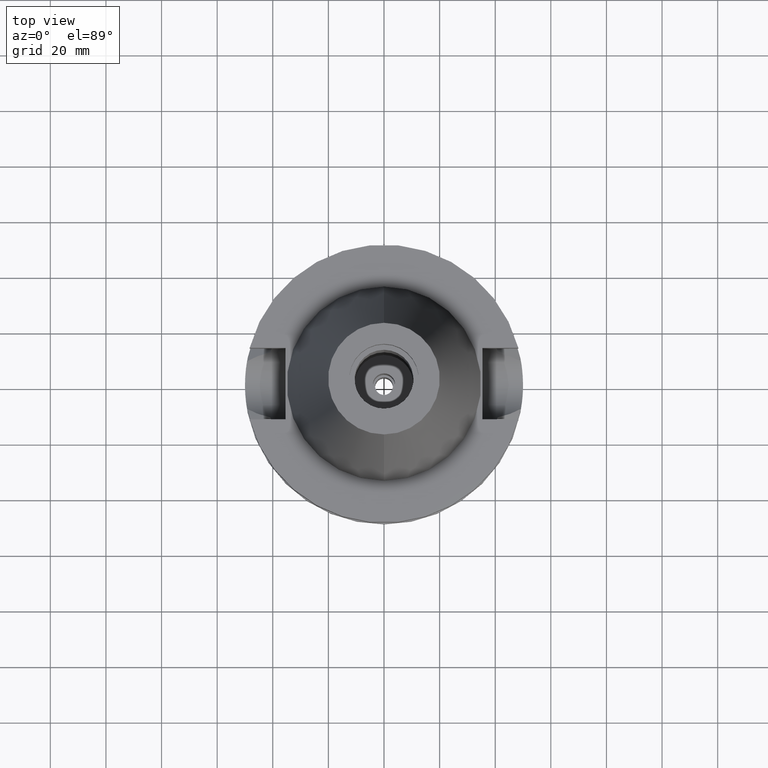
[diagram: clean part render]
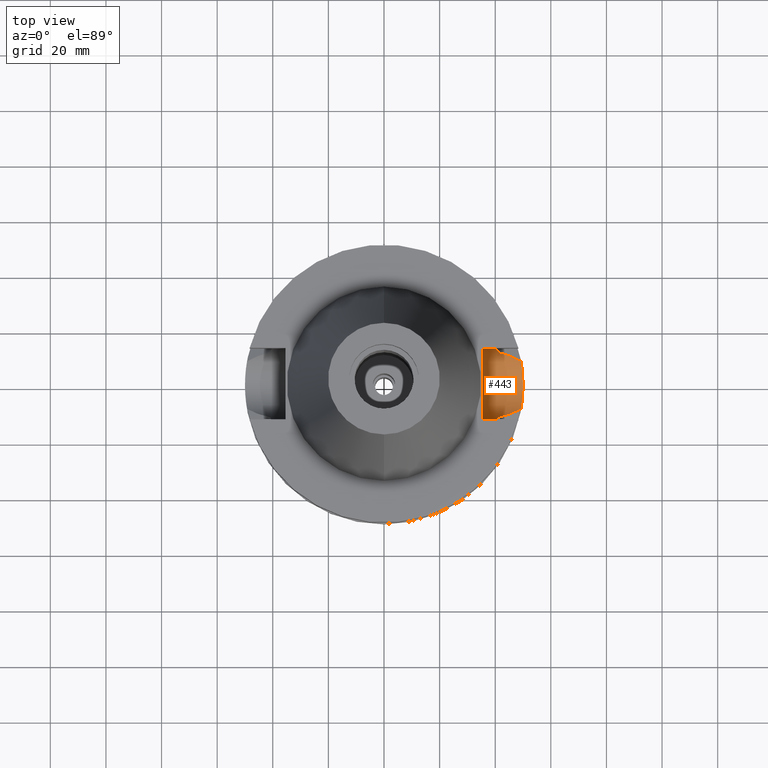
[diagram: same view with one face highlighted and labeled with its STEP entity id]
A machine part, top view. The second image highlights one B-rep face of the part: STEP entity #443.
In plain terms, the highlighted cylindrical surface (edge-blend (fillet) strip) has radius 12.85 mm, axis along (1, 0, 0).
Its self-contained STEP definition (entity closure, byte-faithful):
#7 = EDGE_LOOP ( 'NONE', ( #1324, #1234, #2776, #170, #2078, #1571, #2456, #1216, #219 ) ) ;
#15 = B_SPLINE_CURVE_WITH_KNOTS ( 'NONE', 3,
 ( #1900, #904, #2172, #2404, #2940, #1919, #1880, #230, #1713, #2872, #192, #1692, #1212, #922, #450 ),
 .UNSPECIFIED., .F., .F.,
 ( 4, 2, 2, 1, 1, 1, 2, 2, 4 ),
 ( 0.0000000000000000000, 0.2500000000000126010, 0.3750000000000180411, 0.4375000000000210942, 0.4687500000000225375, 0.4843750000000232592, 0.4921875000000233147, 0.5000000000000233147, 1.000000000000000000 ),
 .UNSPECIFIED. ) ;
#24 = CARTESIAN_POINT ( 'NONE',  ( 49.84835047889562532, 3.895932941305893848, -33.39806964268240819 ) ) ;
#30 = CARTESIAN_POINT ( 'NONE',  ( 40.51083188481999997, -12.84999999999999964, -21.14999999999999858 ) ) ;
#33 = B_SPLINE_CURVE_WITH_KNOTS ( 'NONE', 3,
 ( #2142, #3088, #2595, #2835, #151, #603, #2362, #2861, #646, #1138, #1168, #2822, #890, #3119 ),
 .UNSPECIFIED., .F., .F.,
 ( 4, 2, 2, 1, 1, 2, 2, 4 ),
 ( 0.0000000000000000000, 0.2500000000000049960, 0.3750000000000074940, 0.4375000000000087708, 0.4687500000000102141, 0.4843750000000111022, 0.5000000000000121014, 1.000000000000000000 ),
 .UNSPECIFIED. ) ;
#62 = CARTESIAN_POINT ( 'NONE',  ( 40.51083188481998576, 12.84999999999999609, -22.03305700391314659 ) ) ;
#151 = CARTESIAN_POINT ( 'NONE',  ( 40.54944527668359200, -12.72806992640919255, -22.93044913861063705 ) ) ;
#167 = EDGE_CURVE ( 'NONE', #1740, #1170, #2204, .T. ) ;
#170 = ORIENTED_EDGE ( 'NONE', *, *, #1440, .T. ) ;
#192 = CARTESIAN_POINT ( 'NONE',  ( 45.47680401742304923, -10.32880709954208598, -28.79450308994617558 ) ) ;
#219 = ORIENTED_EDGE ( 'NONE', *, *, #2503, .T. ) ;
#230 = CARTESIAN_POINT ( 'NONE',  ( 45.22093153202164473, -10.42516394849968719, -28.66289994002921304 ) ) ;
#278 = CARTESIAN_POINT ( 'NONE',  ( 49.49358591670171137, 7.117173179385146931, -31.87759042682807120 ) ) ;
#293 = CARTESIAN_POINT ( 'NONE',  ( 49.79168103802542333, 4.559431696498887909, -33.16391296944072309 ) ) ;
#296 = FACE_OUTER_BOUND ( 'NONE', #7, .T. ) ;
#326 = EDGE_CURVE ( 'NONE', #2611, #1740, #1621, .T. ) ;
#334 = CARTESIAN_POINT ( 'NONE',  ( 40.60256585323760703, 12.55733039765435954, -23.87702712880619060 ) ) ;
#432 = CARTESIAN_POINT ( 'NONE',  ( 49.79076485306589461, -4.569454252982713349, -33.16010525646407814 ) ) ;
#443 = ADVANCED_FACE ( 'NONE', ( #296 ), #1776, .F. ) ;
#450 = CARTESIAN_POINT ( 'NONE',  ( 49.26250064874000145, -8.556052234130000045, -30.73730776426999967 ) ) ;
#457 = CARTESIAN_POINT ( 'NONE',  ( 40.63719394021434539, 12.44501252811690506, -24.35255093168898455 ) ) ;
#462 = CARTESIAN_POINT ( 'NONE',  ( 49.71768875269584242, -5.301942241656695920, -32.85649167150086214 ) ) ;
#483 = CARTESIAN_POINT ( 'NONE',  ( 49.66529355495303832, -5.772644196052398868, -32.63560987239748812 ) ) ;
#491 = CARTESIAN_POINT ( 'NONE',  ( 40.85052569294000335, 11.72538061688000077, -26.40718074535000426 ) ) ;
#522 = CARTESIAN_POINT ( 'NONE',  ( 40.85052569294000335, 11.72538061688000077, -26.40718074535000426 ) ) ;
#541 = AXIS2_PLACEMENT_3D ( 'NONE', #1568, #2527, #600 ) ;
#546 = CARTESIAN_POINT ( 'NONE',  ( 49.26250064874000145, 8.556052234130000045, -30.73730776426999967 ) ) ;
#558 = B_SPLINE_CURVE_WITH_KNOTS ( 'NONE', 3,
 ( #1773, #1030, #1499, #2246, #1483, #795, #24, #1294, #2508, #2766, #2941, #1248, #2750, #293, #1974, #2491, #278, #1230, #546 ),
 .UNSPECIFIED., .F., .F.,
 ( 4, 2, 2, 1, 1, 1, 1, 1, 2, 2, 2, 4 ),
 ( 0.0000000000000000000, 0.2500000000000867639, 0.3750000000001300626, 0.4375000000001519340, 0.4687500000001633693, 0.4843750000001689759, 0.4921875000001714184, 0.4960937500001728062, 0.4980468750001731948, 0.5000000000001735279, 0.7500000000000867084, 1.000000000000000000 ),
 .UNSPECIFIED. ) ;
#570 = CARTESIAN_POINT ( 'NONE',  ( 40.60613153987078050, 12.54580241307119692, -23.92958009225780458 ) ) ;
#600 = DIRECTION ( 'NONE',  ( 0.0000000000000000000, 0.0000000000000000000, -1.000000000000000000 ) ) ;
#603 = CARTESIAN_POINT ( 'NONE',  ( 40.56599387319658234, -12.67510252611517352, -23.26591392763370081 ) ) ;
#646 = CARTESIAN_POINT ( 'NONE',  ( 40.59187978545035236, -12.59183662339848375, -23.71299885588245715 ) ) ;
#664 = CARTESIAN_POINT ( 'NONE',  ( 40.85052569294000335, -11.72538061688000077, -26.40718074535000426 ) ) ;
#696 = CARTESIAN_POINT ( 'NONE',  ( 45.30652602070815504, 10.39315923621389182, -28.70677160916045523 ) ) ;
#795 = CARTESIAN_POINT ( 'NONE',  ( 49.86954879904999416, 3.608421991056290690, -33.48456028783355265 ) ) ;
#872 = EDGE_CURVE ( 'NONE', #1669, #1717, #15, .T. ) ;
#890 = CARTESIAN_POINT ( 'NONE',  ( 40.73816527417317701, -12.11683760438691948, -25.53409260248793800 ) ) ;
#900 = CARTESIAN_POINT ( 'NONE',  ( 49.99999999999997158, -0.7411113158218399777, -33.99999999999998579 ) ) ;
#904 = CARTESIAN_POINT ( 'NONE',  ( 41.73175659805394844, -11.52073373974564063, -26.86361597987883343 ) ) ;
#922 = CARTESIAN_POINT ( 'NONE',  ( 48.17852091553269389, -9.178111292532616261, -30.18216027894170495 ) ) ;
#929 = CARTESIAN_POINT ( 'NONE',  ( 49.26250064874000145, -8.556052234130000045, -30.73730776426999967 ) ) ;
#951 = CARTESIAN_POINT ( 'NONE',  ( 49.78847160095052260, -4.594427208010531949, -33.15057897142614252 ) ) ;
#966 = CARTESIAN_POINT ( 'NONE',  ( 40.61156370412643213, 12.52823179351201333, -24.00849701668938252 ) ) ;
#981 = CARTESIAN_POINT ( 'NONE',  ( 48.07284431837162231, 9.204936231272920821, -30.12791793791312855 ) ) ;
#1001 = CARTESIAN_POINT ( 'NONE',  ( 45.36532617387336330, 10.37111397523315048, -28.73702095132316714 ) ) ;
#1030 = CARTESIAN_POINT ( 'NONE',  ( 49.99999999999999289, 0.7411266725617535744, -34.00000000000000711 ) ) ;
#1033 = CARTESIAN_POINT ( 'NONE',  ( 45.61055605103444321, 10.27792771471751010, -28.86316595457725498 ) ) ;
#1072 = CARTESIAN_POINT ( 'NONE',  ( 40.85052569294000335, 11.72538061688000077, -26.40718074535000426 ) ) ;
#1074 = CARTESIAN_POINT ( 'NONE',  ( 35.39999999999999858, 12.84999999999999964, -21.14999999999999858 ) ) ;
#1128 = VERTEX_POINT ( 'NONE', #1074 ) ;
#1138 = CARTESIAN_POINT ( 'NONE',  ( 40.59544233053302520, -12.58034074061086294, -23.76884316745783465 ) ) ;
#1168 = CARTESIAN_POINT ( 'NONE',  ( 40.59736410791902017, -12.57413583718784800, -23.79845734576946725 ) ) ;
#1170 = VERTEX_POINT ( 'NONE', #3087 ) ;
#1174 = CARTESIAN_POINT ( 'NONE',  ( 49.49359291796877613, -7.117121549473845121, -31.87762897366440384 ) ) ;
#1212 = CARTESIAN_POINT ( 'NONE',  ( 46.93070007446810621, -9.772977189546004695, -29.54224714980169963 ) ) ;
#1216 = ORIENTED_EDGE ( 'NONE', *, *, #1245, .T. ) ;
#1230 = CARTESIAN_POINT ( 'NONE',  ( 49.38718097017334685, 7.838190275439148813, -31.37795314318936235 ) ) ;
#1234 = ORIENTED_EDGE ( 'NONE', *, *, #167, .T. ) ;
#1245 = EDGE_CURVE ( 'NONE', #1717, #1321, #2393, .T. ) ;
#1248 = CARTESIAN_POINT ( 'NONE',  ( 49.79344695708956436, 4.540054226088930278, -33.17124985379903990 ) ) ;
#1253 = CARTESIAN_POINT ( 'NONE',  ( 42.51531076643713902, 11.33877017866676695, -27.26945936160768369 ) ) ;
#1261 = DIRECTION ( 'NONE',  ( 0.0000000000000000000, 1.000000000000000000, 0.0000000000000000000 ) ) ;
#1269 = CARTESIAN_POINT ( 'NONE',  ( 40.74530134662688852, 12.08735857076667308, -25.53452462452674254 ) ) ;
#1294 = CARTESIAN_POINT ( 'NONE',  ( 49.82076548536139171, 4.230355037935265905, -33.28443577062855496 ) ) ;
#1301 = CARTESIAN_POINT ( 'NONE',  ( 40.51083188481999997, 12.84999999999999964, -21.14999999999999858 ) ) ;
#1321 = VERTEX_POINT ( 'NONE', #2186 ) ;
#1324 = ORIENTED_EDGE ( 'NONE', *, *, #326, .T. ) ;
#1407 = CARTESIAN_POINT ( 'NONE',  ( 40.51083188481999997, -12.84999999999999964, -21.14999999999999858 ) ) ;
#1425 = CARTESIAN_POINT ( 'NONE',  ( 49.26250064874000145, -8.556052234130000045, -30.73730776426999967 ) ) ;
#1434 = CARTESIAN_POINT ( 'NONE',  ( 46.73492570512753019, 9.820090424055969436, -29.44116763488105448 ) ) ;
#1438 = CARTESIAN_POINT ( 'NONE',  ( 40.62482419419735891, 12.48526689985687987, -24.19323376024561512 ) ) ;
#1440 = EDGE_CURVE ( 'NONE', #1128, #2793, #1517, .T. ) ;
#1483 = CARTESIAN_POINT ( 'NONE',  ( 49.90868415933501012, 3.033014601996791626, -33.64326496409285738 ) ) ;
#1499 = CARTESIAN_POINT ( 'NONE',  ( 49.98260650653999448, 1.500770204474550340, -33.93572921277099397 ) ) ;
#1517 = CIRCLE ( 'NONE', #2183, 12.84999999999999964 ) ;
#1552 = LINE ( 'NONE', #2807, #2445 ) ;
#1568 = CARTESIAN_POINT ( 'NONE',  ( 35.39999999999999858, 0.0000000000000000000, -21.14999999999999858 ) ) ;
#1571 = ORIENTED_EDGE ( 'NONE', *, *, #2182, .T. ) ;
#1607 = CARTESIAN_POINT ( 'NONE',  ( 35.39999999999999858, -12.84999999999999964, -21.14999999999999858 ) ) ;
#1621 = B_SPLINE_CURVE_WITH_KNOTS ( 'NONE', 3,
 ( #2006, #1943, #981, #1700, #1434, #1682, #2178, #1033, #2946, #1001, #2691, #696, #2711, #2465, #1253, #491 ),
 .UNSPECIFIED., .F., .F.,
 ( 4, 2, 2, 1, 1, 1, 1, 2, 2, 4 ),
 ( 0.0000000000000000000, 0.2500000000000117684, 0.3750000000000175415, 0.4375000000000196509, 0.4687500000000213163, 0.4843750000000210942, 0.4921875000000217604, 0.4960937500000224265, 0.5000000000000229816, 1.000000000000000000 ),
 .UNSPECIFIED. ) ;
#1669 = VERTEX_POINT ( 'NONE', #664 ) ;
#1682 = CARTESIAN_POINT ( 'NONE',  ( 46.20326864881108264, 10.04235821467504053, -29.16793774356800029 ) ) ;
#1691 = VERTEX_POINT ( 'NONE', #1407 ) ;
#1692 = CARTESIAN_POINT ( 'NONE',  ( 45.49698090759434166, -10.32111954326902747, -28.80488021964468004 ) ) ;
#1700 = CARTESIAN_POINT ( 'NONE',  ( 47.07795895168138145, 9.668480026635156932, -29.61733927246233122 ) ) ;
#1710 = CARTESIAN_POINT ( 'NONE',  ( 49.38718395754584378, -7.838173075249422084, -31.37796849324647752 ) ) ;
#1713 = CARTESIAN_POINT ( 'NONE',  ( 45.37068992497317055, -10.36903086006377350, -28.73992684710827206 ) ) ;
#1717 = VERTEX_POINT ( 'NONE', #929 ) ;
#1740 = VERTEX_POINT ( 'NONE', #1072 ) ;
#1765 = CARTESIAN_POINT ( 'NONE',  ( 40.66327158114225426, 12.35978760559578582, -24.67233268229389864 ) ) ;
#1773 = CARTESIAN_POINT ( 'NONE',  ( 50.00000000000000000, 1.760919632493999818E-14, -34.00000000000000000 ) ) ;
#1776 = CYLINDRICAL_SURFACE ( 'NONE', #541, 12.85000000000000320 ) ;
#1853 = EDGE_CURVE ( 'NONE', #1691, #2793, #2427, .T. ) ;
#1880 = CARTESIAN_POINT ( 'NONE',  ( 44.91718416898333288, -10.53676434501083037, -28.50665069354082348 ) ) ;
#1900 = CARTESIAN_POINT ( 'NONE',  ( 40.85052569294000335, -11.72538061688000077, -26.40718074535000426 ) ) ;
#1919 = CARTESIAN_POINT ( 'NONE',  ( 44.64957686843281692, -10.63118307441482102, -28.36893841274719819 ) ) ;
#1931 = CARTESIAN_POINT ( 'NONE',  ( 49.76774010462036557, -4.814101204357704056, -33.06459564802763396 ) ) ;
#1943 = CARTESIAN_POINT ( 'NONE',  ( 48.69048206553668479, 8.884314221281981006, -30.44435516719001100 ) ) ;
#1949 = CARTESIAN_POINT ( 'NONE',  ( 49.98260902674834938, -1.500717388191710633, -33.93573183423836781 ) ) ;
#1954 = CARTESIAN_POINT ( 'NONE',  ( 49.26250064874000145, 8.556052234130000045, -30.73730776426999967 ) ) ;
#1974 = CARTESIAN_POINT ( 'NONE',  ( 49.73969925666671799, 5.128026726199715668, -32.94788525401888535 ) ) ;
#1998 = EDGE_CURVE ( 'NONE', #1128, #1170, #1552, .T. ) ;
#2006 = CARTESIAN_POINT ( 'NONE',  ( 49.26250064874000145, 8.556052234130000045, -30.73730776426999967 ) ) ;
#2024 = CARTESIAN_POINT ( 'NONE',  ( 40.54024919018342388, 12.75863389446108975, -22.93144383368384709 ) ) ;
#2078 = ORIENTED_EDGE ( 'NONE', *, *, #1853, .F. ) ;
#2120 = CARTESIAN_POINT ( 'NONE',  ( 49.78969068423913313, -4.581164179001000925, -33.15564271947433639 ) ) ;
#2142 = CARTESIAN_POINT ( 'NONE',  ( 40.51083188481999997, -12.84999999999999964, -21.14999999999999858 ) ) ;
#2153 = CARTESIAN_POINT ( 'NONE',  ( 49.75678283038579508, -4.924618298322599230, -33.01917034626406178 ) ) ;
#2166 = CARTESIAN_POINT ( 'NONE',  ( 49.62579483602875996, -6.100868771125520951, -32.46614492104765048 ) ) ;
#2172 = CARTESIAN_POINT ( 'NONE',  ( 42.56141475332808710, -11.29641035761576617, -27.29256587157861702 ) ) ;
#2178 = CARTESIAN_POINT ( 'NONE',  ( 45.93316332403146163, 10.15220466409144073, -29.02908060865044249 ) ) ;
#2182 = EDGE_CURVE ( 'NONE', #1691, #1669, #33, .T. ) ;
#2183 = AXIS2_PLACEMENT_3D ( 'NONE', #2488, #2986, #1261 ) ;
#2186 = CARTESIAN_POINT ( 'NONE',  ( 50.00000000000000000, 1.760919632493999818E-14, -34.00000000000000000 ) ) ;
#2204 = B_SPLINE_CURVE_WITH_KNOTS ( 'NONE', 3,
 ( #522, #2449, #1269, #2252, #1765, #457, #1438, #966, #570, #334, #2775, #2024, #62, #1301 ),
 .UNSPECIFIED., .F., .F.,
 ( 4, 2, 2, 1, 1, 2, 2, 4 ),
 ( 0.0000000000000000000, 0.2500000000000064948, 0.3750000000000086042, 0.4375000000000106581, 0.4687500000000109357, 0.4843750000000112688, 0.5000000000000115463, 1.000000000000000000 ),
 .UNSPECIFIED. ) ;
#2246 = CARTESIAN_POINT ( 'NONE',  ( 49.93042602616000636, 2.648908125270603708, -33.73002211528705629 ) ) ;
#2252 = CARTESIAN_POINT ( 'NONE',  ( 40.68244087361946271, 12.29668167669231060, -24.88705339705516195 ) ) ;
#2362 = CARTESIAN_POINT ( 'NONE',  ( 40.57495769630776294, -12.64634707790186319, -23.43364513697129325 ) ) ;
#2386 = CARTESIAN_POINT ( 'NONE',  ( 49.86087221398668134, -3.802572501921722026, -33.45144442938796203 ) ) ;
#2393 = B_SPLINE_CURVE_WITH_KNOTS ( 'NONE', 3,
 ( #1425, #1710, #1174, #2166, #483, #462, #2884, #2153, #1931, #2899, #2454, #951, #2120, #2935, #432, #2386, #3147, #1949, #900, #2416 ),
 .UNSPECIFIED., .F., .F.,
 ( 4, 2, 2, 2, 1, 1, 1, 1, 2, 2, 2, 4 ),
 ( 0.0000000000000000000, 0.2499999999999993894, 0.3749999999999998335, 0.4375000000000002776, 0.4687499999999999445, 0.4843749999999998890, 0.4921874999999999445, 0.4960937500000001665, 0.4980468750000001665, 0.5000000000000001110, 0.7500000000000001110, 1.000000000000000000 ),
 .UNSPECIFIED. ) ;
#2404 = CARTESIAN_POINT ( 'NONE',  ( 43.72854286147963876, -10.94015695602864646, -27.89461573338620326 ) ) ;
#2416 = CARTESIAN_POINT ( 'NONE',  ( 50.00000000000000000, 1.760919632493999818E-14, -34.00000000000000000 ) ) ;
#2427 = LINE ( 'NONE', #30, #2486 ) ;
#2445 = VECTOR ( 'NONE', #2500, 1000.000000000000000 ) ;
#2448 = DIRECTION ( 'NONE',  ( -1.000000000000000000, -3.510427359434999885E-14, 0.0000000000000000000 ) ) ;
#2449 = CARTESIAN_POINT ( 'NONE',  ( 40.79434512273290636, 11.92111036772190680, -25.97063387016590852 ) ) ;
#2454 = CARTESIAN_POINT ( 'NONE',  ( 49.78560365034522306, -4.625461934449639045, -33.13867112587748665 ) ) ;
#2456 = ORIENTED_EDGE ( 'NONE', *, *, #872, .T. ) ;
#2465 = CARTESIAN_POINT ( 'NONE',  ( 43.99278859611681014, 10.88337843745132894, -28.03090744973836124 ) ) ;
#2486 = VECTOR ( 'NONE', #2448, 1000.000000000000000 ) ;
#2488 = CARTESIAN_POINT ( 'NONE',  ( 35.39999999999999858, 0.0000000000000000000, -21.14999999999999858 ) ) ;
#2491 = CARTESIAN_POINT ( 'NONE',  ( 49.66984505994839338, 5.762278796420122084, -32.66223234231571126 ) ) ;
#2500 = DIRECTION ( 'NONE',  ( 1.000000000000000000, -3.336643826789999529E-14, 0.0000000000000000000 ) ) ;
#2503 = EDGE_CURVE ( 'NONE', #1321, #2611, #558, .T. ) ;
#2508 = CARTESIAN_POINT ( 'NONE',  ( 49.80625958358908889, 4.397227018219375339, -33.22441102719807304 ) ) ;
#2527 = DIRECTION ( 'NONE',  ( 1.000000000000000000, 0.0000000000000000000, 0.0000000000000000000 ) ) ;
#2595 = CARTESIAN_POINT ( 'NONE',  ( 40.51818681660353860, -12.82722334132538577, -22.03684727484449368 ) ) ;
#2611 = VERTEX_POINT ( 'NONE', #1954 ) ;
#2691 = CARTESIAN_POINT ( 'NONE',  ( 45.33005944696370193, 10.38434577661304026, -28.71887830884145387 ) ) ;
#2711 = CARTESIAN_POINT ( 'NONE',  ( 45.29303863968111443, 10.39819999366574521, -28.69983297341682515 ) ) ;
#2750 = CARTESIAN_POINT ( 'NONE',  ( 49.79236411020666253, 4.551947763949869774, -33.16675130713634445 ) ) ;
#2766 = CARTESIAN_POINT ( 'NONE',  ( 49.79882828145164808, 4.480567247238190554, -33.19359360190417618 ) ) ;
#2775 = CARTESIAN_POINT ( 'NONE',  ( 40.60092238249551144, 12.56264134812070843, -23.85247231211191021 ) ) ;
#2776 = ORIENTED_EDGE ( 'NONE', *, *, #1998, .F. ) ;
#2793 = VERTEX_POINT ( 'NONE', #1607 ) ;
#2807 = CARTESIAN_POINT ( 'NONE',  ( 35.39999999999999858, 12.84999999999999964, -21.14999999999999858 ) ) ;
#2822 = CARTESIAN_POINT ( 'NONE',  ( 40.65435373193400181, -12.39003581045331792, -24.66356197803972350 ) ) ;
#2835 = CARTESIAN_POINT ( 'NONE',  ( 40.54025161195416871, -12.75732247067935354, -22.70680363674587809 ) ) ;
#2861 = CARTESIAN_POINT ( 'NONE',  ( 40.58662215843323651, -12.60879279856068003, -23.62921822474166689 ) ) ;
#2872 = CARTESIAN_POINT ( 'NONE',  ( 45.43441881725932774, -10.34490551168524775, -28.77270382122065584 ) ) ;
#2884 = CARTESIAN_POINT ( 'NONE',  ( 49.73401167183619265, -5.148629039070319102, -32.92456578347048435 ) ) ;
#2899 = CARTESIAN_POINT ( 'NONE',  ( 49.77977405740698202, -4.687880468187646699, -33.11448302222295581 ) ) ;
#2935 = CARTESIAN_POINT ( 'NONE',  ( 49.79050117567612688, -4.572330526445521848, -33.15900978014269640 ) ) ;
#2940 = CARTESIAN_POINT ( 'NONE',  ( 44.10469237673687815, -10.81810119382396174, -28.08842114859209005 ) ) ;
#2941 = CARTESIAN_POINT ( 'NONE',  ( 49.79506804257011510, 4.522212035699438637, -33.17798325146706162 ) ) ;
#2946 = CARTESIAN_POINT ( 'NONE',  ( 45.44738131601400966, 10.34015884421037157, -28.77923189711481911 ) ) ;
#2986 = DIRECTION ( 'NONE',  ( -1.000000000000000000, 0.0000000000000000000, 0.0000000000000000000 ) ) ;
#3087 = CARTESIAN_POINT ( 'NONE',  ( 40.51083188481999997, 12.84999999999999964, -21.14999999999999858 ) ) ;
#3088 = CARTESIAN_POINT ( 'NONE',  ( 40.51083188481999997, -12.85000000000000142, -21.59153118651267889 ) ) ;
#3119 = CARTESIAN_POINT ( 'NONE',  ( 40.85052569294000335, -11.72538061688000077, -26.40718074535000426 ) ) ;
#3147 = CARTESIAN_POINT ( 'NONE',  ( 49.91304513374167584, -3.031454505763369056, -33.66148971129195644 ) ) ;